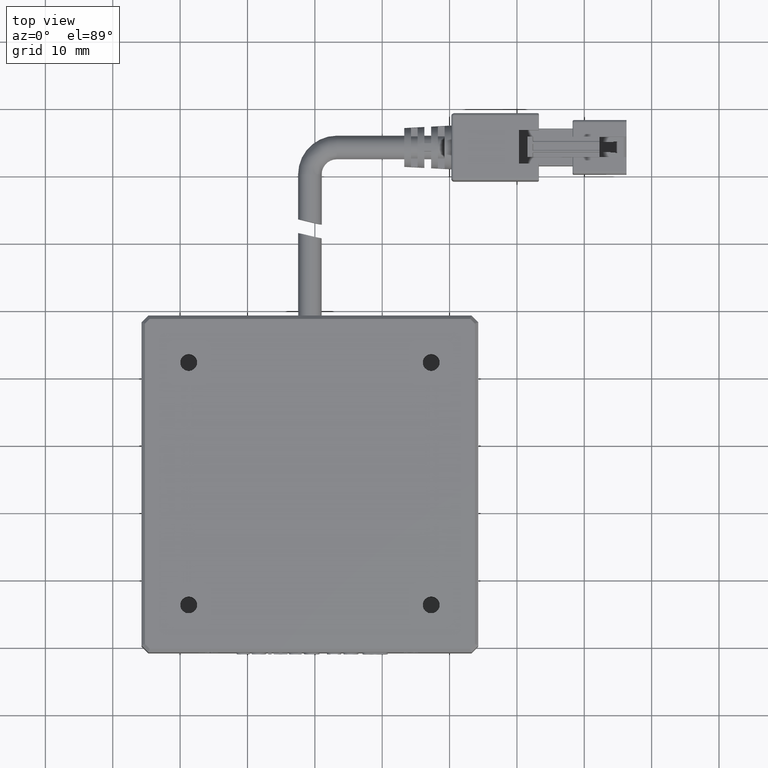
[diagram: clean part render]
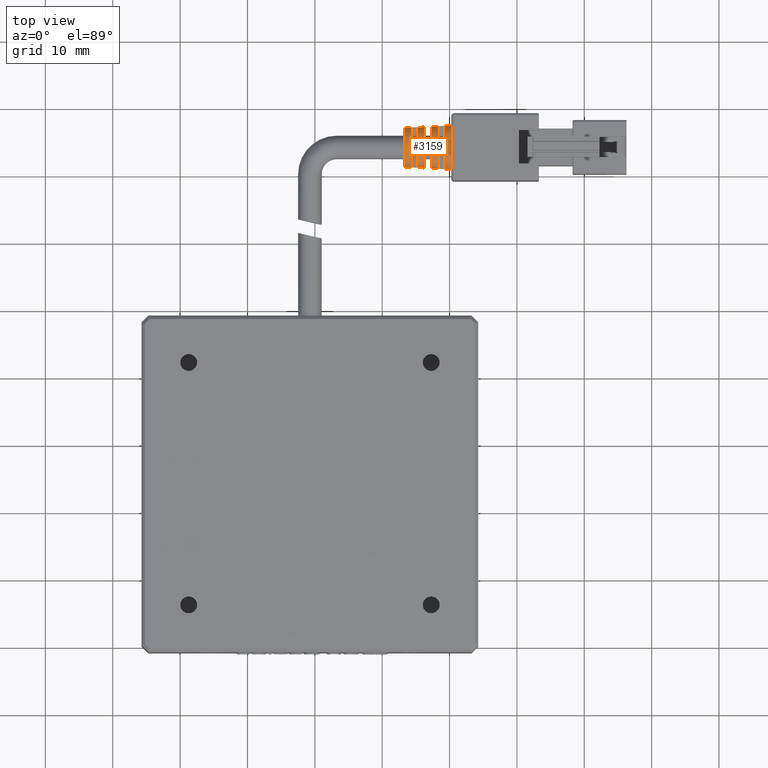
[diagram: same view with one face highlighted and labeled with its STEP entity id]
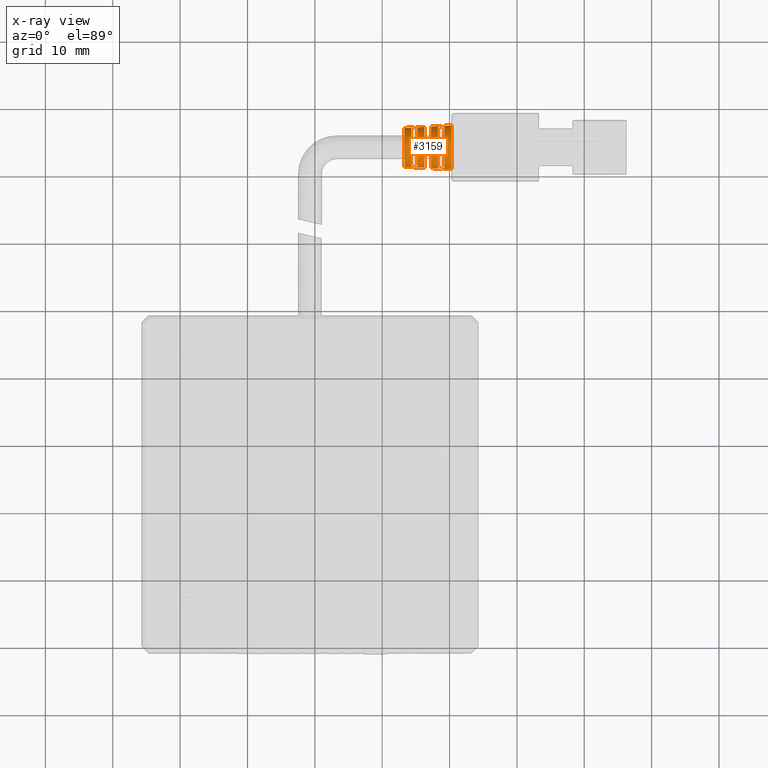
[diagram: x-ray of the same camera — body ghosted, the highlighted face saturated]
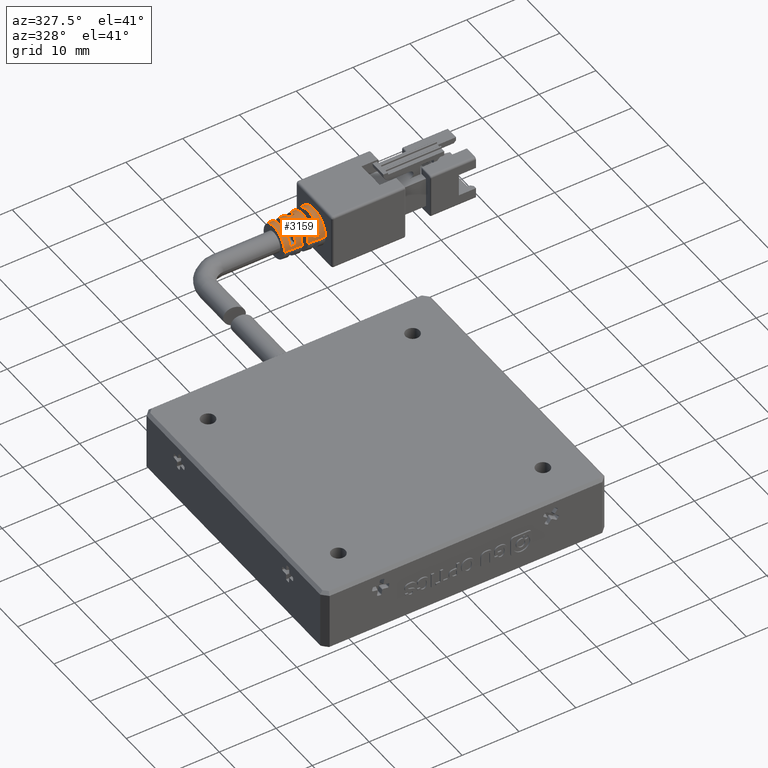
[diagram: same view with one face highlighted and labeled with its STEP entity id]
A machine part, top view. The second image highlights one B-rep face of the part: STEP entity #3159.
The next image is the same camera in x-ray: the body ghosted, the highlighted face saturated — about 0% of this face is hidden behind the body in this view.
A second angle (auxiliary view) of the same face is appended — the face is thin or edge-on in the first view.
In plain terms, the highlighted conical surface has half-angle 3 deg.
Its self-contained STEP definition (entity closure, byte-faithful):
#205 = ORIENTED_EDGE ( 'NONE', *, *, #40279, .T. ) ;
#325 = CARTESIAN_POINT ( 'NONE',  ( 36.93369166311235600, 64.81113924050633600, 1.766210776928611700 ) ) ;
#366 = DIRECTION ( 'NONE',  ( 0.0000000000000000000, 1.000000000000000000, 1.698940350408131500E-015 ) ) ;
#605 = ORIENTED_EDGE ( 'NONE', *, *, #9221, .T. ) ;
#724 = CARTESIAN_POINT ( 'NONE',  ( 38.26702531644617300, 64.21113924050634100, -1.250000000000000700 ) ) ;
#1085 = CARTESIAN_POINT ( 'NONE',  ( 40.26702531622834900, 60.96113924051923800, -1.250000000000000000 ) ) ;
#1087 = ORIENTED_EDGE ( 'NONE', *, *, #20755, .T. ) ;
#1189 = DIRECTION ( 'NONE',  ( 0.9986295347545816000, 0.05233595624279531500, -4.539420596603596700E-018 ) ) ;
#1204 = ORIENTED_EDGE ( 'NONE', *, *, #25596, .T. ) ;
#1361 = CARTESIAN_POINT ( 'NONE',  ( 39.26702531646754600, 61.07034379826750800, -0.6500000000000003600 ) ) ;
#1374 = AXIS2_PLACEMENT_3D ( 'NONE', #39215, #19773, #366 ) ;
#1561 = AXIS2_PLACEMENT_3D ( 'NONE', #724, #23413, #4029 ) ;
#1659 = CIRCLE ( 'NONE', #42153, 3.092776662151075500 ) ;
#1772 = CARTESIAN_POINT ( 'NONE',  ( 33.26702531645072000, 64.21113924050634100, -1.250000000000000700 ) ) ;
#1842 = VERTEX_POINT ( 'NONE', #40462 ) ;
#2150 = CIRCLE ( 'NONE', #1561, 3.145184441432733000 ) ;
#2442 = DIRECTION ( 'NONE',  ( -1.000000000000000000, -0.0000000000000000000, -0.0000000000000000000 ) ) ;
#2576 = ORIENTED_EDGE ( 'NONE', *, *, #18826, .F. ) ;
#2762 = AXIS2_PLACEMENT_3D ( 'NONE', #3012, #25644, #6292 ) ;
#2800 = CARTESIAN_POINT ( 'NONE',  ( 35.26702531645936700, 67.13823875308449400, -0.6500000000000015800 ) ) ;
#3012 = CARTESIAN_POINT ( 'NONE',  ( 36.26702531643662300, 64.21113924050634100, -1.250000000000000700 ) ) ;
#3052 = VECTOR ( 'NONE', #30291, 1000.000000000000200 ) ;
#3159 = ADVANCED_FACE ( 'NONE', ( #36606, #20336, #11696 ), #41223, .T. ) ;
#3385 = CARTESIAN_POINT ( 'NONE',  ( 36.93369166311235600, 63.61113924050633300, 1.766210776928611700 ) ) ;
#3386 = CARTESIAN_POINT ( 'NONE',  ( 34.26702531647827500, 61.33755727372246000, -0.6500000000000012400 ) ) ;
#3937 = CARTESIAN_POINT ( 'NONE',  ( 37.26702531646982000, 67.30391590265740800, -1.250000000000000900 ) ) ;
#4029 = DIRECTION ( 'NONE',  ( 0.0000000000000000000, 1.000000000000000000, -6.894363066298365700E-017 ) ) ;
#5086 = DIRECTION ( 'NONE',  ( 0.0000000000000000000, 1.000000000000000000, -7.520967329303143100E-017 ) ) ;
#5124 = CARTESIAN_POINT ( 'NONE',  ( 35.26702531645798900, 61.28403972792824600, -0.6500000000000011300 ) ) ;
#5253 = CARTESIAN_POINT ( 'NONE',  ( 34.60035828589212100, 61.31971129328074700, -0.6500000000000012400 ) ) ;
#5416 = ORIENTED_EDGE ( 'NONE', *, *, #10382, .T. ) ;
#5985 = LINE ( 'NONE', #26981, #39455 ) ;
#6292 = DIRECTION ( 'NONE',  ( 0.0000000000000000000, 1.000000000000000000, -9.984861047838719200E-016 ) ) ;
#6335 = EDGE_CURVE ( 'NONE', #16881, #18508, #20319, .T. ) ;
#7069 = EDGE_CURVE ( 'NONE', #38271, #18474, #41605, .T. ) ;
#7090 = B_SPLINE_CURVE_WITH_KNOTS ( 'NONE', 3,
 ( #5124, #14907, #5253, #27906 ),
 .UNSPECIFIED., .F., .F.,
 ( 4, 4 ),
 ( 4.726604209672303400E-016, 0.001001431039896517200 ),
 .UNSPECIFIED. ) ;
#7143 = DIRECTION ( 'NONE',  ( 1.000000000000000000, 0.0000000000000000000, 0.0000000000000000000 ) ) ;
#7508 = CARTESIAN_POINT ( 'NONE',  ( 36.26702531644042400, 64.81113924050633600, 1.730577619171115100 ) ) ;
#7560 = CIRCLE ( 'NONE', #16347, 3.197592220717360200 ) ;
#7772 = AXIS2_PLACEMENT_3D ( 'NONE', #33491, #14064, #36770 ) ;
#7928 = CARTESIAN_POINT ( 'NONE',  ( 38.60035835680047000, 61.10591946374124500, -0.6500000000000005800 ) ) ;
#8212 = EDGE_LOOP ( 'NONE', ( #605, #20353, #20175, #33437 ) ) ;
#9160 = CARTESIAN_POINT ( 'NONE',  ( 36.26702531643662300, 67.25150812337278700, -1.250000000000000900 ) ) ;
#9164 = DIRECTION ( 'NONE',  ( 0.0000000000000000000, 1.000000000000000000, -6.672013369168055200E-017 ) ) ;
#9221 = EDGE_CURVE ( 'NONE', #19086, #34166, #21176, .T. ) ;
#9317 = CARTESIAN_POINT ( 'NONE',  ( 39.26702531646754600, 61.07034379826750800, -0.6500000000000003600 ) ) ;
#9992 = VERTEX_POINT ( 'NONE', #39773 ) ;
#10382 = EDGE_CURVE ( 'NONE', #41905, #15720, #21004, .T. ) ;
#11114 = CARTESIAN_POINT ( 'NONE',  ( 33.26702531645072000, 67.09428478552484900, -1.250000000000000900 ) ) ;
#11491 = AXIS2_PLACEMENT_3D ( 'NONE', #36022, #16600, #39282 ) ;
#11696 = FACE_OUTER_BOUND ( 'NONE', #41468, .T. ) ;
#11953 = ORIENTED_EDGE ( 'NONE', *, *, #7069, .T. ) ;
#12300 = CARTESIAN_POINT ( 'NONE',  ( 37.26702531646699200, 63.61113924050633300, 1.784018372051399800 ) ) ;
#12483 = ORIENTED_EDGE ( 'NONE', *, *, #14814, .T. ) ;
#12529 = CIRCLE ( 'NONE', #11491, 2.987961103584790800 ) ;
#12542 = VERTEX_POINT ( 'NONE', #34326 ) ;
#12748 = CARTESIAN_POINT ( 'NONE',  ( 38.60035835680046300, 67.31635901727143800, -0.6500000000000010200 ) ) ;
#12773 = VERTEX_POINT ( 'NONE', #29186 ) ;
#13268 = B_SPLINE_CURVE_WITH_KNOTS ( 'NONE', 3,
 ( #32186, #12748, #35425, #16029 ),
 .UNSPECIFIED., .F., .F.,
 ( 4, 4 ),
 ( 9.453208419344606800E-016, 0.001001423258045922700 ),
 .UNSPECIFIED. ) ;
#13372 = CARTESIAN_POINT ( 'NONE',  ( 36.26702531644042400, 64.81113924050633600, 1.730577619171115100 ) ) ;
#13462 = AXIS2_PLACEMENT_3D ( 'NONE', #26456, #7143, #29766 ) ;
#13913 = CARTESIAN_POINT ( 'NONE',  ( 36.26702531644617300, 63.61113924050633300, 1.730577619171422600 ) ) ;
#14064 = DIRECTION ( 'NONE',  ( -1.000000000000000000, -0.0000000000000000000, -0.0000000000000000000 ) ) ;
#14205 = EDGE_LOOP ( 'NONE', ( #40909, #26835, #12483, #37403 ) ) ;
#14814 = EDGE_CURVE ( 'NONE', #18555, #9992, #23877, .T. ) ;
#14907 = CARTESIAN_POINT ( 'NONE',  ( 34.93369162600836100, 61.30187223562795400, -0.6500000000000011300 ) ) ;
#15148 = CARTESIAN_POINT ( 'NONE',  ( 35.26702531645936700, 67.13823875308449400, -0.6500000000000015800 ) ) ;
#15215 = EDGE_CURVE ( 'NONE', #12773, #18555, #7560, .T. ) ;
#15523 = AXIS2_PLACEMENT_3D ( 'NONE', #21806, #2442, #25075 ) ;
#15568 = CARTESIAN_POINT ( 'NONE',  ( 40.26702531622834900, 64.21113924050634100, -1.250000000000000700 ) ) ;
#15720 = VERTEX_POINT ( 'NONE', #38055 ) ;
#16029 = CARTESIAN_POINT ( 'NONE',  ( 39.26702531647462300, 67.35193468274553700, -0.6500000000000010200 ) ) ;
#16109 = DIRECTION ( 'NONE',  ( 1.000000000000000000, 0.0000000000000000000, 0.0000000000000000000 ) ) ;
#16347 = AXIS2_PLACEMENT_3D ( 'NONE', #35506, #16109, #38771 ) ;
#16372 = VERTEX_POINT ( 'NONE', #11114 ) ;
#16600 = DIRECTION ( 'NONE',  ( 1.000000000000000000, 0.0000000000000000000, 0.0000000000000000000 ) ) ;
#16881 = VERTEX_POINT ( 'NONE', #27040 ) ;
#17937 = ORIENTED_EDGE ( 'NONE', *, *, #36016, .T. ) ;
#18474 = VERTEX_POINT ( 'NONE', #12300 ) ;
#18479 = VECTOR ( 'NONE', #20710, 1000.000000000000200 ) ;
#18508 = VERTEX_POINT ( 'NONE', #38267 ) ;
#18509 = DIRECTION ( 'NONE',  ( 1.000000000000000000, 0.0000000000000000000, 0.0000000000000000000 ) ) ;
#18555 = VERTEX_POINT ( 'NONE', #9317 ) ;
#18572 = DIRECTION ( 'NONE',  ( 1.000000000000000000, 0.0000000000000000000, 0.0000000000000000000 ) ) ;
#18642 = VERTEX_POINT ( 'NONE', #3386 ) ;
#18826 = EDGE_CURVE ( 'NONE', #41905, #18508, #5985, .T. ) ;
#19086 = VERTEX_POINT ( 'NONE', #35343 ) ;
#19773 = DIRECTION ( 'NONE',  ( -1.000000000000000000, -0.0000000000000000000, -0.0000000000000000000 ) ) ;
#20175 = ORIENTED_EDGE ( 'NONE', *, *, #26836, .T. ) ;
#20319 = CIRCLE ( 'NONE', #15523, 3.249999999999017700 ) ;
#20336 = FACE_BOUND ( 'NONE', #8212, .T. ) ;
#20353 = ORIENTED_EDGE ( 'NONE', *, *, #22982, .T. ) ;
#20710 = DIRECTION ( 'NONE',  ( 0.9986295347545816000, -0.05233595624279531500, 1.094872672590911800E-017 ) ) ;
#20755 = EDGE_CURVE ( 'NONE', #15720, #28630, #37236, .T. ) ;
#20769 = ORIENTED_EDGE ( 'NONE', *, *, #6335, .T. ) ;
#20792 = CARTESIAN_POINT ( 'NONE',  ( 38.93369169520680400, 61.08812897988507700, -0.6500000000000004700 ) ) ;
#20957 = AXIS2_PLACEMENT_3D ( 'NONE', #1772, #24435, #5086 ) ;
#21004 = CIRCLE ( 'NONE', #13462, 3.092776662151075500 ) ;
#21176 = B_SPLINE_CURVE_WITH_KNOTS ( 'NONE', 3,
 ( #22158, #41729, #41592, #2800 ),
 .UNSPECIFIED., .F., .F.,
 ( 4, 4 ),
 ( 2.821323884305459600E-015, 0.001001431039903069900 ),
 .UNSPECIFIED. ) ;
#21279 = CIRCLE ( 'NONE', #20957, 2.883145545018506200 ) ;
#21806 = CARTESIAN_POINT ( 'NONE',  ( 40.26702531645572200, 64.21113924050634100, -1.250000000000000700 ) ) ;
#22037 = LINE ( 'NONE', #31574, #38345 ) ;
#22158 = CARTESIAN_POINT ( 'NONE',  ( 34.26702531646981200, 67.08472120728976100, -0.6500000000000016900 ) ) ;
#22973 = CARTESIAN_POINT ( 'NONE',  ( 37.26702531646277100, 64.81113924050633600, 1.784018372051174200 ) ) ;
#22982 = EDGE_CURVE ( 'NONE', #34166, #40958, #12529, .T. ) ;
#23413 = DIRECTION ( 'NONE',  ( -1.000000000000000000, -0.0000000000000000000, -0.0000000000000000000 ) ) ;
#23877 = B_SPLINE_CURVE_WITH_KNOTS ( 'NONE', 3,
 ( #1361, #20792, #7928, #30555 ),
 .UNSPECIFIED., .F., .F.,
 ( 4, 4 ),
 ( 2.341740480690032800E-015, 0.001001423258043095100 ),
 .UNSPECIFIED. ) ;
#24435 = DIRECTION ( 'NONE',  ( 1.000000000000000000, 0.0000000000000000000, 0.0000000000000000000 ) ) ;
#24762 = CARTESIAN_POINT ( 'NONE',  ( 37.26702531646982000, 61.11836257835526000, -1.250000000000000000 ) ) ;
#25075 = DIRECTION ( 'NONE',  ( 0.0000000000000000000, 1.000000000000000000, -6.672013369143582000E-017 ) ) ;
#25337 = AXIS2_PLACEMENT_3D ( 'NONE', #15568, #18509, #9164 ) ;
#25596 = EDGE_CURVE ( 'NONE', #1842, #38355, #35730, .T. ) ;
#25644 = DIRECTION ( 'NONE',  ( -1.000000000000000000, -0.0000000000000000000, -0.0000000000000000000 ) ) ;
#25993 = CARTESIAN_POINT ( 'NONE',  ( 36.60035832392478000, 63.61113924050633300, 1.748397300001395300 ) ) ;
#26456 = CARTESIAN_POINT ( 'NONE',  ( 37.26702531646982000, 64.21113924050634100, -1.250000000000000700 ) ) ;
#26835 = ORIENTED_EDGE ( 'NONE', *, *, #15215, .T. ) ;
#26836 = EDGE_CURVE ( 'NONE', #40958, #18642, #7090, .T. ) ;
#26856 = VERTEX_POINT ( 'NONE', #24762 ) ;
#26981 = CARTESIAN_POINT ( 'NONE',  ( 40.26702531622834900, 67.46113924049343800, -1.250000000000000900 ) ) ;
#27040 = CARTESIAN_POINT ( 'NONE',  ( 40.26702531645572200, 60.96113924050732900, -1.250000000000000000 ) ) ;
#27631 = CIRCLE ( 'NONE', #7772, 3.040368882866448400 ) ;
#27855 = CIRCLE ( 'NONE', #1374, 2.935553324303133300 ) ;
#27906 = CARTESIAN_POINT ( 'NONE',  ( 34.26702531647827500, 61.33755727372246000, -0.6500000000000012400 ) ) ;
#28077 = CARTESIAN_POINT ( 'NONE',  ( 35.26702531645798900, 61.28403972792824600, -0.6500000000000011300 ) ) ;
#28536 = EDGE_CURVE ( 'NONE', #18642, #19086, #27855, .T. ) ;
#28630 = VERTEX_POINT ( 'NONE', #7508 ) ;
#29186 = CARTESIAN_POINT ( 'NONE',  ( 39.26702531647462300, 67.35193468274553700, -0.6500000000000010200 ) ) ;
#29272 = ORIENTED_EDGE ( 'NONE', *, *, #41601, .F. ) ;
#29285 = CARTESIAN_POINT ( 'NONE',  ( 36.26702531644617300, 63.61113924050633300, 1.730577619171422600 ) ) ;
#29766 = DIRECTION ( 'NONE',  ( 0.0000000000000000000, 1.000000000000000000, -7.011189561495362000E-017 ) ) ;
#30193 = CARTESIAN_POINT ( 'NONE',  ( 36.26702531643662300, 61.17077035763989600, -1.250000000000000000 ) ) ;
#30291 = DIRECTION ( 'NONE',  ( 0.9986295347545816000, -0.05233595624279531500, 1.094872672590911800E-017 ) ) ;
#30555 = CARTESIAN_POINT ( 'NONE',  ( 38.26702531644808400, 61.12371552960575400, -0.6500000000000006900 ) ) ;
#30958 = VERTEX_POINT ( 'NONE', #9160 ) ;
#31574 = CARTESIAN_POINT ( 'NONE',  ( 40.26702531622834900, 67.46113924049343800, -1.250000000000000900 ) ) ;
#31687 = EDGE_CURVE ( 'NONE', #9992, #12542, #2150, .T. ) ;
#32030 = EDGE_CURVE ( 'NONE', #18474, #26856, #1659, .T. ) ;
#32186 = CARTESIAN_POINT ( 'NONE',  ( 38.26702531645094800, 67.29856295140706400, -0.6500000000000011300 ) ) ;
#32576 = CARTESIAN_POINT ( 'NONE',  ( 37.26702531646699200, 63.61113924050633300, 1.784018372051399800 ) ) ;
#32808 = CARTESIAN_POINT ( 'NONE',  ( 36.60035832392478000, 64.81113924050633600, 1.748397300001394800 ) ) ;
#33320 = EDGE_CURVE ( 'NONE', #28630, #30958, #38453, .T. ) ;
#33437 = ORIENTED_EDGE ( 'NONE', *, *, #28536, .T. ) ;
#33491 = CARTESIAN_POINT ( 'NONE',  ( 36.26702531643662300, 64.21113924050634100, -1.250000000000000700 ) ) ;
#34166 = VERTEX_POINT ( 'NONE', #15148 ) ;
#34326 = CARTESIAN_POINT ( 'NONE',  ( 38.26702531645094800, 67.29856295140706400, -0.6500000000000011300 ) ) ;
#34829 = DIRECTION ( 'NONE',  ( 0.9986295347545816000, 0.05233595624279531500, -4.539420596603596700E-018 ) ) ;
#35343 = CARTESIAN_POINT ( 'NONE',  ( 34.26702531646981200, 67.08472120728976100, -0.6500000000000016900 ) ) ;
#35425 = CARTESIAN_POINT ( 'NONE',  ( 38.93369169520680400, 67.33414950112761200, -0.6500000000000011300 ) ) ;
#35506 = CARTESIAN_POINT ( 'NONE',  ( 39.26702531647936900, 64.21113924050634100, -1.250000000000000700 ) ) ;
#35730 = LINE ( 'NONE', #36764, #18479 ) ;
#36016 = EDGE_CURVE ( 'NONE', #38355, #38271, #27631, .T. ) ;
#36022 = CARTESIAN_POINT ( 'NONE',  ( 35.26702531646027000, 64.21113924050634100, -1.250000000000000700 ) ) ;
#36606 = FACE_BOUND ( 'NONE', #14205, .T. ) ;
#36764 = CARTESIAN_POINT ( 'NONE',  ( 40.26702531622834900, 60.96113924051923800, -1.250000000000000000 ) ) ;
#36770 = DIRECTION ( 'NONE',  ( 0.0000000000000000000, 1.000000000000000000, 1.711690465343780600E-015 ) ) ;
#36813 = ORIENTED_EDGE ( 'NONE', *, *, #38919, .T. ) ;
#37236 = B_SPLINE_CURVE_WITH_KNOTS ( 'NONE', 3,
 ( #22973, #325, #32808, #13372 ),
 .UNSPECIFIED., .F., .F.,
 ( 4, 4 ),
 ( 1.403651546814124500E-015, 0.001001426938980516500 ),
 .UNSPECIFIED. ) ;
#37403 = ORIENTED_EDGE ( 'NONE', *, *, #31687, .T. ) ;
#37565 = LINE ( 'NONE', #1085, #3052 ) ;
#38028 = CARTESIAN_POINT ( 'NONE',  ( 37.26702531646982000, 64.21113924050634100, -1.250000000000000700 ) ) ;
#38055 = CARTESIAN_POINT ( 'NONE',  ( 37.26702531646277100, 64.81113924050633600, 1.784018372051174200 ) ) ;
#38267 = CARTESIAN_POINT ( 'NONE',  ( 40.26702531645572200, 67.46113924050536100, -1.250000000000000900 ) ) ;
#38271 = VERTEX_POINT ( 'NONE', #13913 ) ;
#38345 = VECTOR ( 'NONE', #34829, 1000.000000000000200 ) ;
#38355 = VERTEX_POINT ( 'NONE', #30193 ) ;
#38453 = CIRCLE ( 'NONE', #2762, 3.040368882866448400 ) ;
#38771 = DIRECTION ( 'NONE',  ( 0.0000000000000000000, 1.000000000000000000, -6.781366088276698700E-017 ) ) ;
#38919 = EDGE_CURVE ( 'NONE', #16372, #1842, #21279, .T. ) ;
#39215 = CARTESIAN_POINT ( 'NONE',  ( 34.26702531648391700, 64.21113924050634100, -1.250000000000000700 ) ) ;
#39282 = DIRECTION ( 'NONE',  ( 0.0000000000000000000, 1.000000000000000000, -7.257137123938718400E-017 ) ) ;
#39455 = VECTOR ( 'NONE', #1189, 1000.000000000000200 ) ;
#39732 = ORIENTED_EDGE ( 'NONE', *, *, #33320, .T. ) ;
#39773 = CARTESIAN_POINT ( 'NONE',  ( 38.26702531644808400, 61.12371552960575400, -0.6500000000000006900 ) ) ;
#40081 = EDGE_CURVE ( 'NONE', #12542, #12773, #13268, .T. ) ;
#40279 = EDGE_CURVE ( 'NONE', #26856, #16881, #37565, .T. ) ;
#40462 = CARTESIAN_POINT ( 'NONE',  ( 33.26702531645072000, 61.32799369548783400, -1.250000000000000000 ) ) ;
#40909 = ORIENTED_EDGE ( 'NONE', *, *, #40081, .T. ) ;
#40958 = VERTEX_POINT ( 'NONE', #28077 ) ;
#41020 = ORIENTED_EDGE ( 'NONE', *, *, #32030, .T. ) ;
#41223 = CONICAL_SURFACE ( 'NONE', #25337, 3.249999999987096500, 0.05235987755968116900 ) ;
#41356 = DIRECTION ( 'NONE',  ( 0.0000000000000000000, 1.000000000000000000, -7.011189561495362000E-017 ) ) ;
#41468 = EDGE_LOOP ( 'NONE', ( #36813, #1204, #17937, #11953, #41020, #205, #20769, #2576, #5416, #1087, #39732, #29272 ) ) ;
#41592 = CARTESIAN_POINT ( 'NONE',  ( 34.93369162600836100, 67.12040624538471400, -0.6500000000000015800 ) ) ;
#41601 = EDGE_CURVE ( 'NONE', #16372, #30958, #22037, .T. ) ;
#41605 = B_SPLINE_CURVE_WITH_KNOTS ( 'NONE', 3,
 ( #29285, #25993, #3385, #32576 ),
 .UNSPECIFIED., .F., .F.,
 ( 4, 4 ),
 ( 1.945664656350847900E-015, 0.001001426938979536800 ),
 .UNSPECIFIED. ) ;
#41729 = CARTESIAN_POINT ( 'NONE',  ( 34.60035828589212100, 67.10256718773193500, -0.6500000000000016900 ) ) ;
#41905 = VERTEX_POINT ( 'NONE', #3937 ) ;
#42153 = AXIS2_PLACEMENT_3D ( 'NONE', #38028, #18572, #41356 ) ;